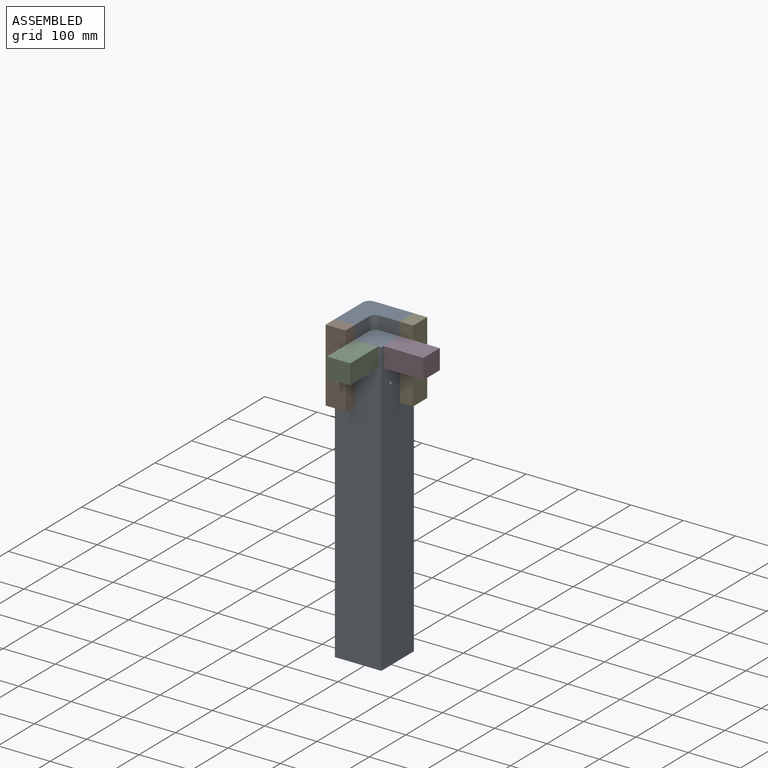
[diagram: assembled view]
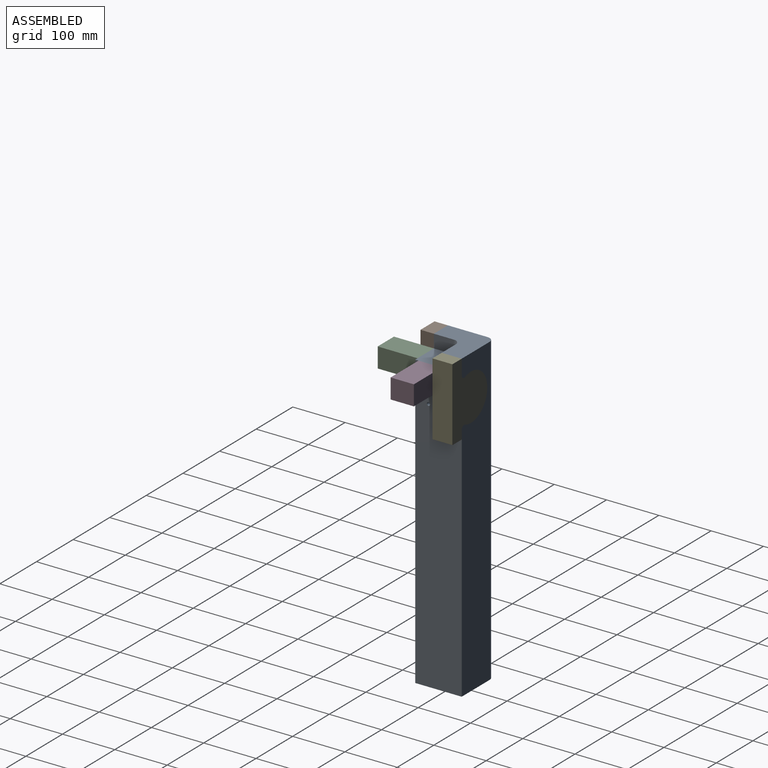
[diagram: assembled view, second angle]
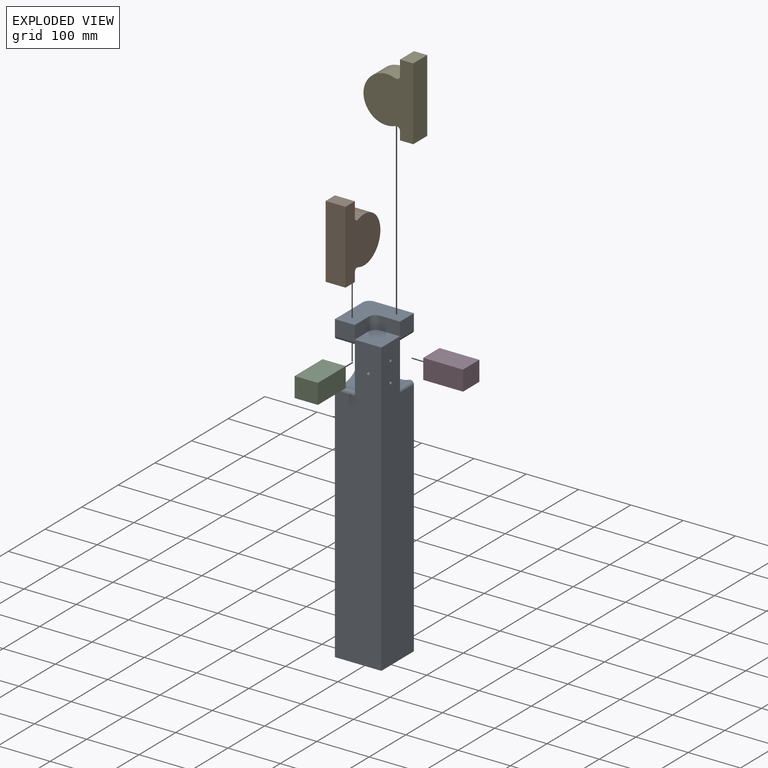
[diagram: exploded view]
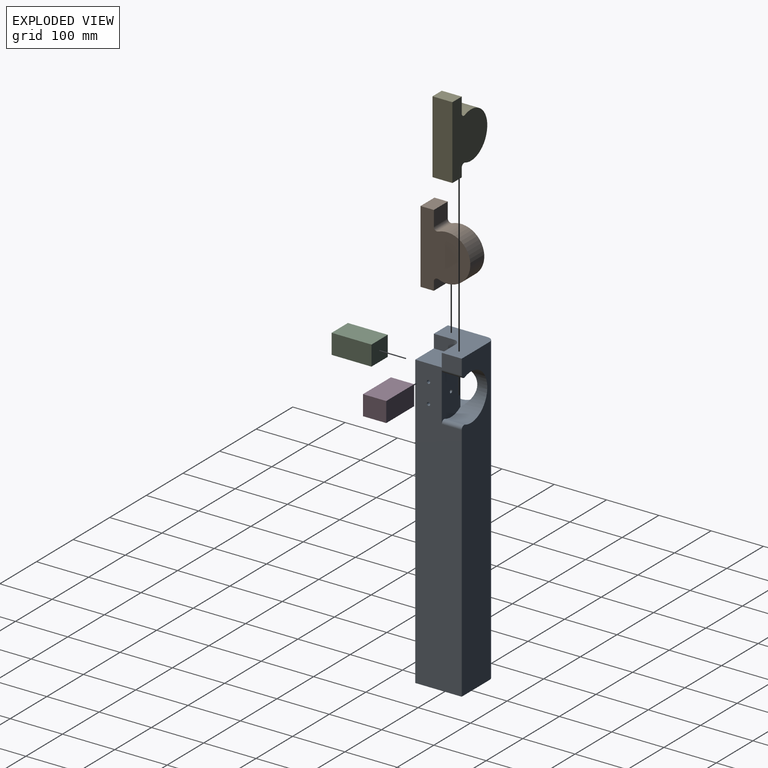
[diagram: exploded view, second angle]
ASSEMBLY  parts=5 mates=4
PART A: 22 faces, bbox 88.9x88.9x584.2 mm
  f0: plane 94.19x50.8mm, normal (-1,0,0), area 4240.8mm2, adj f4,f10,f12,f14,f15,f19,f20
  f1: plane 584.2x88.9mm, normal (1,0,0), area 46993.2mm2, adj f2,f3,f4,f7,f8,f9,f12,f14
  f2: plane 584.2x76.2mm, normal (0,1,0), area 39236.6mm2, adj f1,f8,f9,f11,f16,f17,f18
  f3: plane 50.8x50.8mm, normal (0,0,1), area 2546mm2, adj f1,f4,f6,f7,f21
  f4: plane 584.2x88.9mm, normal (0,-1,0), area 47024.9mm2, adj f0,f1,f3,f5,f6,f8,f9,f13
  f5: plane 584.2x76.2mm, normal (-1,0,0), area 39236.6mm2, adj f4,f8,f9,f10,f16,f19,f20
  f6: plane 38.1x25.4mm, normal (1,0,0), area 967.7mm2, adj f3,f4,f8,f21
  f7: plane 38.1x25.4mm, normal (0,-1,0), area 967.7mm2, adj f1,f3,f8,f21
  f8: plane 88.9x88.9mm, normal (0,0,1), area 5322.6mm2, adj f1,f2,f4,f5,f6,f7,f16,f21
  f9: plane 88.9x88.9mm, normal (0,0,-1), area 7868.6mm2, adj f1,f2,f4,f5,f16
  f10: cylinder r=44.45mm len=88.9mm, axis (-1,0,0), area 5553mm2, adj f0,f5,f11,f19,f20
  f11: cylinder r=44.45mm len=88.9mm, axis (0,1,0), area 5553mm2, adj f2,f10,f12,f17,f18
  f12: plane 94.19x50.8mm, normal (0,1,0), area 4272.5mm2, adj f0,f1,f11,f13,f17,f18
  f13: cylinder r=3.17mm len=50.8mm, axis (0,1,0), area 1013.4mm2, adj f4,f12
  f14: cylinder r=3.17mm len=50.8mm, axis (-1,0,0), area 1013.4mm2, adj f0,f1
  f15: cylinder r=3.17mm len=50.8mm, axis (-1,0,0), area 1013.4mm2, adj f0,f1
  f16: cylinder r=12.7mm len=584.2mm, axis (0,0,1), area 11654.3mm2, adj f2,f5,f8,f9
  f17: cylinder r=6.35mm len=38.1mm, axis (0,1,0), area 473mm2, adj f1,f2,f11,f12
  f18: cylinder r=6.35mm len=38.1mm, axis (0,1,0), area 473mm2, adj f1,f2,f11,f12
  f19: cylinder r=6.35mm len=38.1mm, axis (-1,0,0), area 473mm2, adj f0,f4,f5,f10
  f20: cylinder r=6.35mm len=38.1mm, axis (-1,0,0), area 473mm2, adj f0,f4,f5,f10
  f21: cylinder r=12.7mm len=25.4mm, axis (0,0,-1), area 506.7mm2, adj f3,f6,f7,f8
PART B: 10 faces, bbox 95.3x38.1x139.7 mm
  f0: plane 139.7x38.1mm, normal (1,0,0), area 5322.6mm2, adj f1,f5,f6,f7
  f1: plane 38.1x25.4mm, normal (0,0,1), area 967.7mm2, adj f0,f2,f6,f7
  f2: plane 38.1x29.11mm, normal (-1,0,0), area 1109mm2, adj f1,f6,f7,f8
  f3: cylinder r=44.45mm len=88.9mm, axis (0,1,0), area 6622.4mm2, adj f6,f7,f8,f9
  f4: plane 38.1x16.41mm, normal (-1,0,0), area 625.1mm2, adj f5,f6,f7,f9
  f5: plane 38.1x25.4mm, normal (0,0,-1), area 967.7mm2, adj f0,f4,f6,f7
  f6: plane 139.7x95.25mm, normal (0,-1,0), area 8827.8mm2, adj f0,f1,f2,f3,f4,f5,f8,f9
  f7: plane 139.7x95.25mm, normal (0,1,0), area 8827.8mm2, adj f0,f1,f2,f3,f4,f5,f8,f9
  f8: cylinder r=6.35mm len=38.1mm, axis (0,1,0), area 473mm2, adj f2,f3,f6,f7
  f9: cylinder r=6.35mm len=38.1mm, axis (0,1,0), area 473mm2, adj f3,f4,f6,f7
PART C: 6 faces, bbox 44.5x76.2x38.1 mm
  f0: plane 76.2x38.1mm, normal (1,0,0), area 2903.2mm2, adj f1,f3,f4,f5
  f1: plane 76.2x44.45mm, normal (0,0,1), area 3387.1mm2, adj f0,f2,f4,f5
  f2: plane 76.2x38.1mm, normal (-1,0,0), area 2903.2mm2, adj f1,f3,f4,f5
  f3: plane 76.2x44.45mm, normal (0,0,-1), area 3387.1mm2, adj f0,f2,f4,f5
  f4: plane 44.45x38.1mm, normal (0,-1,0), area 1693.5mm2, adj f0,f1,f2,f3
  f5: plane 44.45x38.1mm, normal (0,1,0), area 1693.5mm2, adj f0,f1,f2,f3
PART D: same geometry as C
PART E: same geometry as B
PLACE A at identity
PLACE B rot(axis=(0,0,-1),90deg) t=(-6.35,-19.05,76.2)mm
PLACE C t=(15.87,-44.45,107.95)mm
PLACE D rot(axis=(0,0,1),90deg) t=(44.45,-15.87,107.95)mm
PLACE E t=(19.05,44.45,76.2)mm
MATE fastened B.f1 <-> A.f8  axis (0,0,1) through (-44.45,-44.45,152.4)mm
MATE fastened E.f1 <-> A.f8  axis (0,0,1) through (44.45,44.45,152.4)mm
MATE fastened D.f1 <-> A.f3  axis (0,0,1) through (44.45,6.35,127)mm
MATE fastened C.f1 <-> A.f3  axis (0,0,1) through (-6.35,-44.45,127)mm
